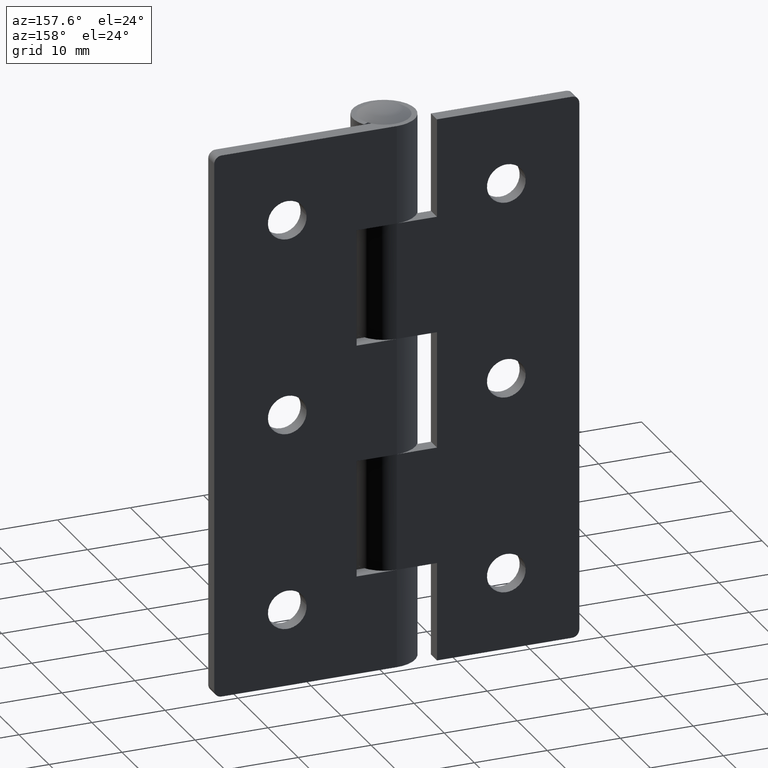
[diagram: clean part render]
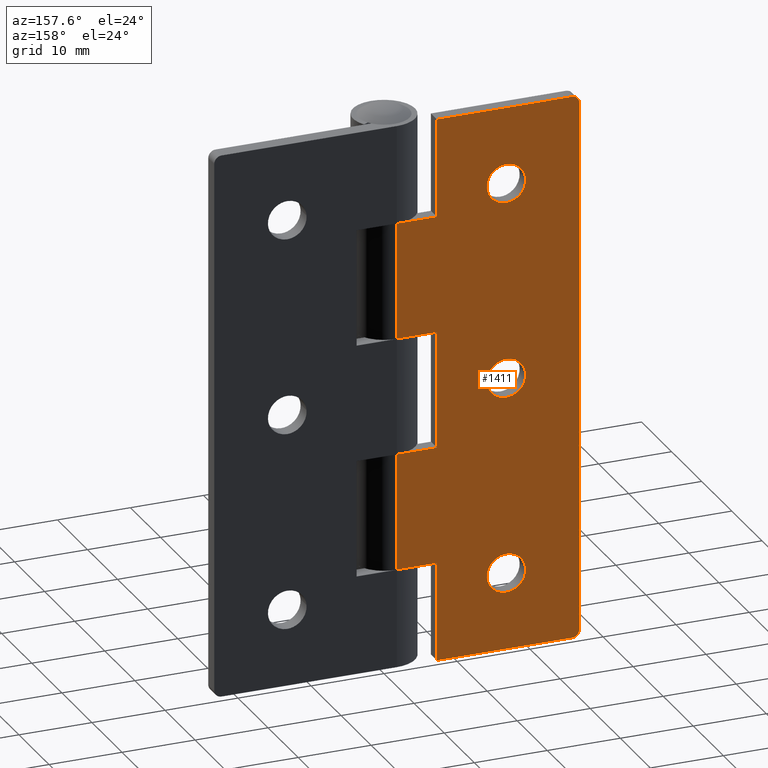
[diagram: same view with one face highlighted and labeled with its STEP entity id]
A machine part, auxiliary view. The second image highlights one B-rep face of the part: STEP entity #1411.
In plain terms, the highlighted face is a freeform B-spline surface patch.
Its self-contained STEP definition (entity closure, byte-faithful):
#79=CARTESIAN_POINT('',(-17.641830934388452,4.250000000000000,37.707916603733970));
#80=VERTEX_POINT('',#79);
#86=CARTESIAN_POINT('',(-15.0,4.250000000000000,40.149999999999999));
#87=VERTEX_POINT('',#86);
#88=CARTESIAN_POINT('',(-15.0,4.250000000000000,40.149999999999999));
#89=CARTESIAN_POINT('',(-17.449634802791604,4.250000000000001,40.150000000000006));
#90=CARTESIAN_POINT('',(-17.641830934388448,4.250000000000000,37.707916603733985));
#98=(BOUNDED_CURVE()B_SPLINE_CURVE(2,(#88,#89,#90),.UNSPECIFIED.,.F.,.U.)B_SPLINE_CURVE_WITH_KNOTS((3,3),(0.0,0.236331300625606),.UNSPECIFIED.)CURVE()GEOMETRIC_REPRESENTATION_ITEM()RATIONAL_B_SPLINE_CURVE((1.0,0.723120658613586,0.969723356156871))REPRESENTATION_ITEM(''));
#99=EDGE_CURVE('',#87,#80,#98,.T.);
#101=CARTESIAN_POINT('',(-12.358169065611561,4.250000000000000,37.292083396266037));
#102=VERTEX_POINT('',#101);
#103=CARTESIAN_POINT('',(-12.358169065611559,4.250000000000001,37.292083396266037));
#104=CARTESIAN_POINT('',(-12.350000000000001,4.250000000000001,37.395881216374242));
#105=CARTESIAN_POINT('',(-12.350000000000000,4.250000000000000,37.500000000000000));
#106=CARTESIAN_POINT('',(-12.350000000000000,4.249999999999999,40.150000000000006));
#107=CARTESIAN_POINT('',(-15.0,4.250000000000000,40.149999999999999));
#115=(BOUNDED_CURVE()B_SPLINE_CURVE(2,(#103,#104,#105,#106,#107),.UNSPECIFIED.,.F.,.U.)B_SPLINE_CURVE_WITH_KNOTS((3,2,3),(0.736331300625606,0.750000000000000,1.0),.UNSPECIFIED.)CURVE()GEOMETRIC_REPRESENTATION_ITEM()RATIONAL_B_SPLINE_CURVE((0.969723356156871,0.983986122572961,1.0,0.707106781186548,1.0))REPRESENTATION_ITEM(''));
#116=EDGE_CURVE('',#102,#87,#115,.T.);
#192=CARTESIAN_POINT('',(-15.0,4.250000000000000,34.850000000000001));
#193=VERTEX_POINT('',#192);
#194=CARTESIAN_POINT('',(-15.0,4.250000000000000,34.850000000000001));
#195=CARTESIAN_POINT('',(-12.550365197208407,4.250000000000000,34.850000000000001));
#196=CARTESIAN_POINT('',(-12.358169065611555,4.250000000000000,37.292083396266037));
#204=(BOUNDED_CURVE()B_SPLINE_CURVE(2,(#194,#195,#196),.UNSPECIFIED.,.F.,.U.)B_SPLINE_CURVE_WITH_KNOTS((3,3),(0.500000000000000,0.736331300625605),.UNSPECIFIED.)CURVE()GEOMETRIC_REPRESENTATION_ITEM()RATIONAL_B_SPLINE_CURVE((1.0,0.723120658613587,0.969723356156869))REPRESENTATION_ITEM(''));
#205=EDGE_CURVE('',#193,#102,#204,.T.);
#207=CARTESIAN_POINT('',(-17.641830934388452,4.249999999999999,37.707916603733970));
#208=CARTESIAN_POINT('',(-17.650000000000006,4.250000000000000,37.604118783625758));
#209=CARTESIAN_POINT('',(-17.649999999999999,4.250000000000000,37.500000000000000));
#210=CARTESIAN_POINT('',(-17.649999999999995,4.249999999999999,34.849999999999994));
#211=CARTESIAN_POINT('',(-15.0,4.250000000000000,34.850000000000001));
#219=(BOUNDED_CURVE()B_SPLINE_CURVE(2,(#207,#208,#209,#210,#211),.UNSPECIFIED.,.F.,.U.)B_SPLINE_CURVE_WITH_KNOTS((3,2,3),(0.236331300625606,0.250000000000000,0.500000000000000),.UNSPECIFIED.)CURVE()GEOMETRIC_REPRESENTATION_ITEM()RATIONAL_B_SPLINE_CURVE((0.969723356156871,0.983986122572961,1.0,0.707106781186548,1.0))REPRESENTATION_ITEM(''));
#220=EDGE_CURVE('',#80,#193,#219,.T.);
#261=CARTESIAN_POINT('',(-17.641830934388452,4.250000000000000,64.707901603733973));
#262=VERTEX_POINT('',#261);
#268=CARTESIAN_POINT('',(-15.0,4.250000000000000,67.149985000000001));
#269=VERTEX_POINT('',#268);
#270=CARTESIAN_POINT('',(-15.0,4.250000000000000,67.149985000000001));
#271=CARTESIAN_POINT('',(-17.449634802791596,4.250000000000000,67.149985000000001));
#272=CARTESIAN_POINT('',(-17.641830934388445,4.250000000000000,64.707901603733973));
#280=(BOUNDED_CURVE()B_SPLINE_CURVE(2,(#270,#271,#272),.UNSPECIFIED.,.F.,.U.)B_SPLINE_CURVE_WITH_KNOTS((3,3),(0.0,0.236331300625605),.UNSPECIFIED.)CURVE()GEOMETRIC_REPRESENTATION_ITEM()RATIONAL_B_SPLINE_CURVE((1.0,0.723120658613587,0.969723356156870))REPRESENTATION_ITEM(''));
#281=EDGE_CURVE('',#269,#262,#280,.T.);
#283=CARTESIAN_POINT('',(-12.358169065611561,4.250000000000000,64.292068396266018));
#284=VERTEX_POINT('',#283);
#285=CARTESIAN_POINT('',(-12.358169065611554,4.250000000000000,64.292068396266018));
#286=CARTESIAN_POINT('',(-12.350000000000005,4.250000000000001,64.395866216374245));
#287=CARTESIAN_POINT('',(-12.350000000000000,4.250000000000000,64.499984999999995));
#288=CARTESIAN_POINT('',(-12.350000000000000,4.249999999999999,67.149985000000001));
#289=CARTESIAN_POINT('',(-15.0,4.250000000000000,67.149985000000001));
#297=(BOUNDED_CURVE()B_SPLINE_CURVE(2,(#285,#286,#287,#288,#289),.UNSPECIFIED.,.F.,.U.)B_SPLINE_CURVE_WITH_KNOTS((3,2,3),(0.736331300625606,0.750000000000000,1.0),.UNSPECIFIED.)CURVE()GEOMETRIC_REPRESENTATION_ITEM()RATIONAL_B_SPLINE_CURVE((0.969723356156870,0.983986122572961,1.0,0.707106781186548,1.0))REPRESENTATION_ITEM(''));
#298=EDGE_CURVE('',#284,#269,#297,.T.);
#374=CARTESIAN_POINT('',(-15.0,4.250000000000000,61.849984999999997));
#375=VERTEX_POINT('',#374);
#376=CARTESIAN_POINT('',(-15.0,4.250000000000000,61.849984999999997));
#377=CARTESIAN_POINT('',(-12.550365197208407,4.250000000000000,61.849984999999990));
#378=CARTESIAN_POINT('',(-12.358169065611555,4.250000000000000,64.292068396266018));
#386=(BOUNDED_CURVE()B_SPLINE_CURVE(2,(#376,#377,#378),.UNSPECIFIED.,.F.,.U.)B_SPLINE_CURVE_WITH_KNOTS((3,3),(0.500000000000000,0.736331300625605),.UNSPECIFIED.)CURVE()GEOMETRIC_REPRESENTATION_ITEM()RATIONAL_B_SPLINE_CURVE((1.0,0.723120658613587,0.969723356156869))REPRESENTATION_ITEM(''));
#387=EDGE_CURVE('',#375,#284,#386,.T.);
#389=CARTESIAN_POINT('',(-17.641830934388441,4.250000000000000,64.707901603733973));
#390=CARTESIAN_POINT('',(-17.649999999999995,4.250000000000000,64.604103783625760));
#391=CARTESIAN_POINT('',(-17.649999999999999,4.250000000000000,64.499984999999995));
#392=CARTESIAN_POINT('',(-17.649999999999995,4.249999999999999,61.849985000000004));
#393=CARTESIAN_POINT('',(-15.0,4.250000000000000,61.849984999999997));
#401=(BOUNDED_CURVE()B_SPLINE_CURVE(2,(#389,#390,#391,#392,#393),.UNSPECIFIED.,.F.,.U.)B_SPLINE_CURVE_WITH_KNOTS((3,2,3),(0.236331300625605,0.250000000000000,0.500000000000000),.UNSPECIFIED.)CURVE()GEOMETRIC_REPRESENTATION_ITEM()RATIONAL_B_SPLINE_CURVE((0.969723356156870,0.983986122572961,1.0,0.707106781186548,1.0))REPRESENTATION_ITEM(''));
#402=EDGE_CURVE('',#262,#375,#401,.T.);
#443=CARTESIAN_POINT('',(-17.641830934388452,4.250000000000000,10.707916603733970));
#444=VERTEX_POINT('',#443);
#450=CARTESIAN_POINT('',(-15.0,4.250000000000000,13.150000000000000));
#451=VERTEX_POINT('',#450);
#452=CARTESIAN_POINT('',(-15.0,4.250000000000000,13.150000000000000));
#453=CARTESIAN_POINT('',(-17.449634802791604,4.250000000000001,13.150000000000000));
#454=CARTESIAN_POINT('',(-17.641830934388448,4.250000000000000,10.707916603733965));
#462=(BOUNDED_CURVE()B_SPLINE_CURVE(2,(#452,#453,#454),.UNSPECIFIED.,.F.,.U.)B_SPLINE_CURVE_WITH_KNOTS((3,3),(0.0,0.236331300625606),.UNSPECIFIED.)CURVE()GEOMETRIC_REPRESENTATION_ITEM()RATIONAL_B_SPLINE_CURVE((1.0,0.723120658613586,0.969723356156871))REPRESENTATION_ITEM(''));
#463=EDGE_CURVE('',#451,#444,#462,.T.);
#465=CARTESIAN_POINT('',(-12.358169065611550,4.250000000000000,10.292083396266030));
#466=VERTEX_POINT('',#465);
#467=CARTESIAN_POINT('',(-12.358169065611552,4.250000000000000,10.292083396266030));
#468=CARTESIAN_POINT('',(-12.349999999999998,4.250000000000000,10.395881216374240));
#469=CARTESIAN_POINT('',(-12.350000000000000,4.250000000000000,10.500000000000000));
#470=CARTESIAN_POINT('',(-12.350000000000000,4.249999999999999,13.150000000000000));
#471=CARTESIAN_POINT('',(-15.0,4.250000000000000,13.150000000000000));
#479=(BOUNDED_CURVE()B_SPLINE_CURVE(2,(#467,#468,#469,#470,#471),.UNSPECIFIED.,.F.,.U.)B_SPLINE_CURVE_WITH_KNOTS((3,2,3),(0.736331300625606,0.750000000000000,1.0),.UNSPECIFIED.)CURVE()GEOMETRIC_REPRESENTATION_ITEM()RATIONAL_B_SPLINE_CURVE((0.969723356156871,0.983986122572961,1.0,0.707106781186548,1.0))REPRESENTATION_ITEM(''));
#480=EDGE_CURVE('',#466,#451,#479,.T.);
#556=CARTESIAN_POINT('',(-15.0,4.250000000000000,7.850000000000001));
#557=VERTEX_POINT('',#556);
#558=CARTESIAN_POINT('',(-15.0,4.250000000000000,7.850000000000001));
#559=CARTESIAN_POINT('',(-12.550365197208407,4.250000000000000,7.850000000000002));
#560=CARTESIAN_POINT('',(-12.358169065611555,4.250000000000000,10.292083396266030));
#568=(BOUNDED_CURVE()B_SPLINE_CURVE(2,(#558,#559,#560),.UNSPECIFIED.,.F.,.U.)B_SPLINE_CURVE_WITH_KNOTS((3,3),(0.500000000000000,0.736331300625605),.UNSPECIFIED.)CURVE()GEOMETRIC_REPRESENTATION_ITEM()RATIONAL_B_SPLINE_CURVE((1.0,0.723120658613587,0.969723356156869))REPRESENTATION_ITEM(''));
#569=EDGE_CURVE('',#557,#466,#568,.T.);
#571=CARTESIAN_POINT('',(-17.641830934388448,4.250000000000000,10.707916603733965));
#572=CARTESIAN_POINT('',(-17.650000000000002,4.250000000000000,10.604118783625761));
#573=CARTESIAN_POINT('',(-17.649999999999999,4.250000000000000,10.500000000000000));
#574=CARTESIAN_POINT('',(-17.649999999999995,4.249999999999999,7.850000000000003));
#575=CARTESIAN_POINT('',(-15.0,4.250000000000000,7.850000000000001));
#583=(BOUNDED_CURVE()B_SPLINE_CURVE(2,(#571,#572,#573,#574,#575),.UNSPECIFIED.,.F.,.U.)B_SPLINE_CURVE_WITH_KNOTS((3,2,3),(0.236331300625606,0.250000000000000,0.500000000000000),.UNSPECIFIED.)CURVE()GEOMETRIC_REPRESENTATION_ITEM()RATIONAL_B_SPLINE_CURVE((0.969723356156871,0.983986122572961,1.0,0.707106781186548,1.0))REPRESENTATION_ITEM(''));
#584=EDGE_CURVE('',#444,#557,#583,.T.);
#621=CARTESIAN_POINT('',(-24.0,4.250000000000000,74.999985000000009));
#622=VERTEX_POINT('',#621);
#628=CARTESIAN_POINT('',(-25.0,4.250000000000000,73.999985000000095));
#629=VERTEX_POINT('',#628);
#630=CARTESIAN_POINT('',(-25.0,4.250000000000000,73.999985000000095));
#631=CARTESIAN_POINT('',(-25.0,4.249999999999999,74.999985000000109));
#632=CARTESIAN_POINT('',(-24.0,4.250000000000000,74.999985000000109));
#640=(BOUNDED_CURVE()B_SPLINE_CURVE(2,(#630,#631,#632),.UNSPECIFIED.,.F.,.U.)CURVE()GEOMETRIC_REPRESENTATION_ITEM()QUASI_UNIFORM_CURVE()RATIONAL_B_SPLINE_CURVE((1.0,0.707106781186548,1.0))REPRESENTATION_ITEM(''));
#641=EDGE_CURVE('',#629,#622,#640,.T.);
#682=CARTESIAN_POINT('',(-25.0,4.250000000000000,1.0));
#683=VERTEX_POINT('',#682);
#689=CARTESIAN_POINT('',(-24.0,4.250000000000000,0.0));
#690=VERTEX_POINT('',#689);
#691=CARTESIAN_POINT('',(-24.0,4.250000000000000,0.0));
#692=CARTESIAN_POINT('',(-25.0,4.249999999999999,0.0));
#693=CARTESIAN_POINT('',(-25.0,4.250000000000000,1.0));
#701=(BOUNDED_CURVE()B_SPLINE_CURVE(2,(#691,#692,#693),.UNSPECIFIED.,.F.,.U.)CURVE()GEOMETRIC_REPRESENTATION_ITEM()QUASI_UNIFORM_CURVE()RATIONAL_B_SPLINE_CURVE((1.0,0.707106781186548,1.0))REPRESENTATION_ITEM(''));
#702=EDGE_CURVE('',#690,#683,#701,.T.);
#717=CARTESIAN_POINT('',(-5.499999999999900,4.250000000000000,29.500000000000000));
#718=VERTEX_POINT('',#717);
#719=CARTESIAN_POINT('',(0.0,4.250000000000000,29.500000000000000));
#720=VERTEX_POINT('',#719);
#721=CARTESIAN_POINT('',(-5.499999999999900,4.250000000000000,29.500000000000000));
#722=CARTESIAN_POINT('',(0.0,4.250000000000000,29.500000000000000));
#723=QUASI_UNIFORM_CURVE('',1,(#721,#722),.UNSPECIFIED.,.F.,.U.);
#724=EDGE_CURVE('',#718,#720,#723,.T.);
#796=CARTESIAN_POINT('',(-5.499999999999900,4.250000000000000,45.500000000000000));
#797=VERTEX_POINT('',#796);
#798=CARTESIAN_POINT('',(-5.499999999999900,4.250000000000000,45.500000000000000));
#799=CARTESIAN_POINT('',(-5.499999999999900,4.250000000000000,29.500000000000000));
#800=QUASI_UNIFORM_CURVE('',1,(#798,#799),.UNSPECIFIED.,.F.,.U.);
#801=EDGE_CURVE('',#797,#718,#800,.T.);
#825=CARTESIAN_POINT('',(0.0,4.250000000000000,45.500000000000000));
#826=VERTEX_POINT('',#825);
#880=CARTESIAN_POINT('',(0.0,4.250000000000000,45.500000000000000));
#881=CARTESIAN_POINT('',(-5.499999999999900,4.250000000000000,45.500000000000000));
#882=QUASI_UNIFORM_CURVE('',1,(#880,#881),.UNSPECIFIED.,.F.,.U.);
#883=EDGE_CURVE('',#826,#797,#882,.T.);
#895=CARTESIAN_POINT('',(0.0,4.250000000000000,13.499985000000001));
#896=VERTEX_POINT('',#895);
#951=CARTESIAN_POINT('',(-5.499999999999900,4.250000000000000,13.499985000000001));
#952=VERTEX_POINT('',#951);
#958=CARTESIAN_POINT('',(-5.499999999999900,4.250000000000000,13.499985000000001));
#959=CARTESIAN_POINT('',(0.0,4.250000000000000,13.499985000000001));
#960=QUASI_UNIFORM_CURVE('',1,(#958,#959),.UNSPECIFIED.,.F.,.U.);
#961=EDGE_CURVE('',#952,#896,#960,.T.);
#973=CARTESIAN_POINT('',(-5.499999999999900,4.250000000000000,0.0));
#974=VERTEX_POINT('',#973);
#980=CARTESIAN_POINT('',(-5.499999999999900,4.250000000000000,0.0));
#981=CARTESIAN_POINT('',(-5.499999999999900,4.250000000000000,13.499985000000001));
#982=QUASI_UNIFORM_CURVE('',1,(#980,#981),.UNSPECIFIED.,.F.,.U.);
#983=EDGE_CURVE('',#974,#952,#982,.T.);
#999=CARTESIAN_POINT('',(-5.499999999999900,4.250000000000000,61.500000000000000));
#1000=VERTEX_POINT('',#999);
#1001=CARTESIAN_POINT('',(0.0,4.250000000000000,61.500000000000000));
#1002=VERTEX_POINT('',#1001);
#1003=CARTESIAN_POINT('',(-5.499999999999900,4.250000000000000,61.500000000000000));
#1004=CARTESIAN_POINT('',(0.0,4.250000000000000,61.500000000000000));
#1005=QUASI_UNIFORM_CURVE('',1,(#1003,#1004),.UNSPECIFIED.,.F.,.U.);
#1006=EDGE_CURVE('',#1000,#1002,#1005,.T.);
#1078=CARTESIAN_POINT('',(-5.499999999999900,4.250000000000000,74.999985000000009));
#1079=VERTEX_POINT('',#1078);
#1080=CARTESIAN_POINT('',(-5.499999999999900,4.250000000000000,74.999985000000009));
#1081=CARTESIAN_POINT('',(-5.499999999999900,4.250000000000000,61.500000000000000));
#1082=QUASI_UNIFORM_CURVE('',1,(#1080,#1081),.UNSPECIFIED.,.F.,.U.);
#1083=EDGE_CURVE('',#1079,#1000,#1082,.T.);
#1105=CARTESIAN_POINT('',(-25.0,4.250000000000000,73.999985000000095));
#1106=CARTESIAN_POINT('',(-25.0,4.250000000000000,1.0));
#1107=QUASI_UNIFORM_CURVE('',1,(#1105,#1106),.UNSPECIFIED.,.F.,.U.);
#1108=EDGE_CURVE('',#629,#683,#1107,.T.);
#1125=CARTESIAN_POINT('',(-24.0,4.250000000000000,74.999985000000009));
#1126=CARTESIAN_POINT('',(-5.499999999999900,4.250000000000000,74.999985000000009));
#1127=QUASI_UNIFORM_CURVE('',1,(#1125,#1126),.UNSPECIFIED.,.F.,.U.);
#1128=EDGE_CURVE('',#622,#1079,#1127,.T.);
#1151=CARTESIAN_POINT('',(-24.0,4.250000000000000,0.0));
#1152=CARTESIAN_POINT('',(-5.499999999999900,4.250000000000000,0.0));
#1153=QUASI_UNIFORM_CURVE('',1,(#1151,#1152),.UNSPECIFIED.,.F.,.U.);
#1154=EDGE_CURVE('',#690,#974,#1153,.T.);
#1291=CARTESIAN_POINT('',(0.0,4.250000000000000,29.500000000000000));
#1292=CARTESIAN_POINT('',(0.0,4.250000000000000,13.499985000000001));
#1293=QUASI_UNIFORM_CURVE('',1,(#1291,#1292),.UNSPECIFIED.,.F.,.U.);
#1294=EDGE_CURVE('',#720,#896,#1293,.T.);
#1322=CARTESIAN_POINT('',(0.0,4.250000000000000,61.500000000000000));
#1323=CARTESIAN_POINT('',(0.0,4.250000000000000,45.500000000000000));
#1324=QUASI_UNIFORM_CURVE('',1,(#1322,#1323),.UNSPECIFIED.,.F.,.U.);
#1325=EDGE_CURVE('',#1002,#826,#1324,.T.);
#1372=CARTESIAN_POINT('',(-26.248749951545150,4.250000000000000,-3.746249105385474));
#1373=CARTESIAN_POINT('',(-26.248749951545150,4.250000000000000,78.746236117041846));
#1374=CARTESIAN_POINT('',(1.248750622097401,4.250000000000000,-3.746249105385474));
#1375=CARTESIAN_POINT('',(1.248750622097401,4.250000000000000,78.746236117041846));
#1376=B_SPLINE_SURFACE_WITH_KNOTS('',1,1,((#1372,#1374),(#1373,#1375)),.UNSPECIFIED.,.F.,.F.,.U.,(2,2),(2,2),(0.0,82.492485222427320),(0.0,27.497500573642551),.UNSPECIFIED.);
#1377=ORIENTED_EDGE('',*,*,#1154,.F.);
#1378=ORIENTED_EDGE('',*,*,#702,.T.);
#1379=ORIENTED_EDGE('',*,*,#1108,.F.);
#1380=ORIENTED_EDGE('',*,*,#641,.T.);
#1381=ORIENTED_EDGE('',*,*,#1128,.T.);
#1382=ORIENTED_EDGE('',*,*,#1083,.T.);
#1383=ORIENTED_EDGE('',*,*,#1006,.T.);
#1384=ORIENTED_EDGE('',*,*,#1325,.T.);
#1385=ORIENTED_EDGE('',*,*,#883,.T.);
#1386=ORIENTED_EDGE('',*,*,#801,.T.);
#1387=ORIENTED_EDGE('',*,*,#724,.T.);
#1388=ORIENTED_EDGE('',*,*,#1294,.T.);
#1389=ORIENTED_EDGE('',*,*,#961,.F.);
#1390=ORIENTED_EDGE('',*,*,#983,.F.);
#1391=EDGE_LOOP('',(#1377,#1378,#1379,#1380,#1381,#1382,#1383,#1384,#1385,#1386,#1387,#1388,#1389,#1390));
#1392=FACE_OUTER_BOUND('',#1391,.T.);
#1393=ORIENTED_EDGE('',*,*,#569,.T.);
#1394=ORIENTED_EDGE('',*,*,#480,.T.);
#1395=ORIENTED_EDGE('',*,*,#463,.T.);
#1396=ORIENTED_EDGE('',*,*,#584,.T.);
#1397=EDGE_LOOP('',(#1393,#1394,#1395,#1396));
#1398=FACE_BOUND('',#1397,.T.);
#1399=ORIENTED_EDGE('',*,*,#387,.T.);
#1400=ORIENTED_EDGE('',*,*,#298,.T.);
#1401=ORIENTED_EDGE('',*,*,#281,.T.);
#1402=ORIENTED_EDGE('',*,*,#402,.T.);
#1403=EDGE_LOOP('',(#1399,#1400,#1401,#1402));
#1404=FACE_BOUND('',#1403,.T.);
#1405=ORIENTED_EDGE('',*,*,#205,.T.);
#1406=ORIENTED_EDGE('',*,*,#116,.T.);
#1407=ORIENTED_EDGE('',*,*,#99,.T.);
#1408=ORIENTED_EDGE('',*,*,#220,.T.);
#1409=EDGE_LOOP('',(#1405,#1406,#1407,#1408));
#1410=FACE_BOUND('',#1409,.T.);
#1411=ADVANCED_FACE('',(#1392,#1398,#1404,#1410),#1376,.T.);